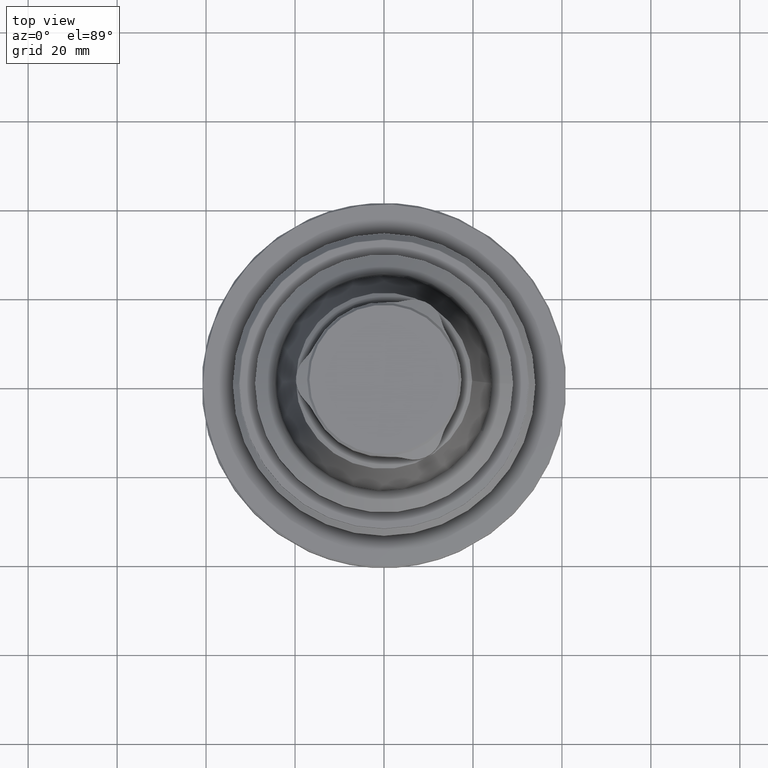
[diagram: clean part render]
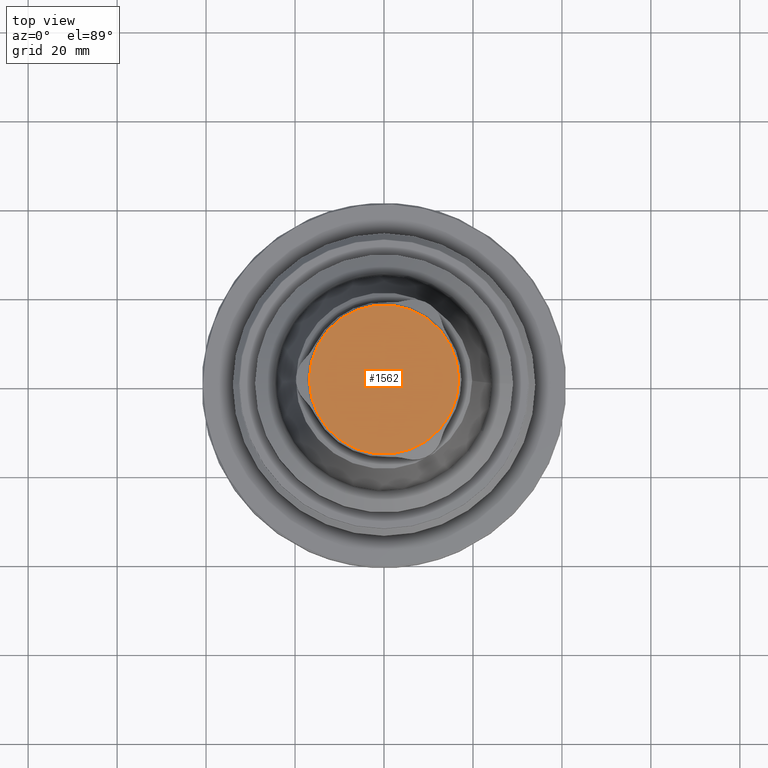
[diagram: same view with one face highlighted and labeled with its STEP entity id]
A machine part, top view. The second image highlights one B-rep face of the part: STEP entity #1562.
In plain terms, the highlighted planar face has unit normal (0, -0, 1).
Its self-contained STEP definition (entity closure, byte-faithful):
#260=PLANE('',#1740);
#631=ORIENTED_EDGE('',*,*,#909,.F.);
#909=EDGE_CURVE('',#1080,#1080,#1190,.T.);
#1080=VERTEX_POINT('',#2679);
#1190=CIRCLE('',#1741,16.78);
#1301=EDGE_LOOP('',(#631));
#1436=FACE_BOUND('',#1301,.T.);
#1562=ADVANCED_FACE('',(#1436),#260,.T.);
#1740=AXIS2_PLACEMENT_3D('',#2677,#2133,#2134);
#1741=AXIS2_PLACEMENT_3D('',#2678,#2135,#2136);
#2133=DIRECTION('',(1.22461692971323E-16,-7.49836836562635E-33,1.));
#2134=DIRECTION('',(-1.,6.12303176911189E-17,1.22461692971323E-16));
#2135=DIRECTION('',(-1.22461692971323E-16,7.49836836562635E-33,-1.));
#2136=DIRECTION('',(1.,-6.12303176911189E-17,-1.22461692971323E-16));
#2677=CARTESIAN_POINT('',(16.78,-1.02744473085697E-15,73.));
#2678=CARTESIAN_POINT('',(-1.18098243419732E-19,7.23119296335328E-36,73.));
#2679=CARTESIAN_POINT('',(16.78,-1.02744473085697E-15,73.));